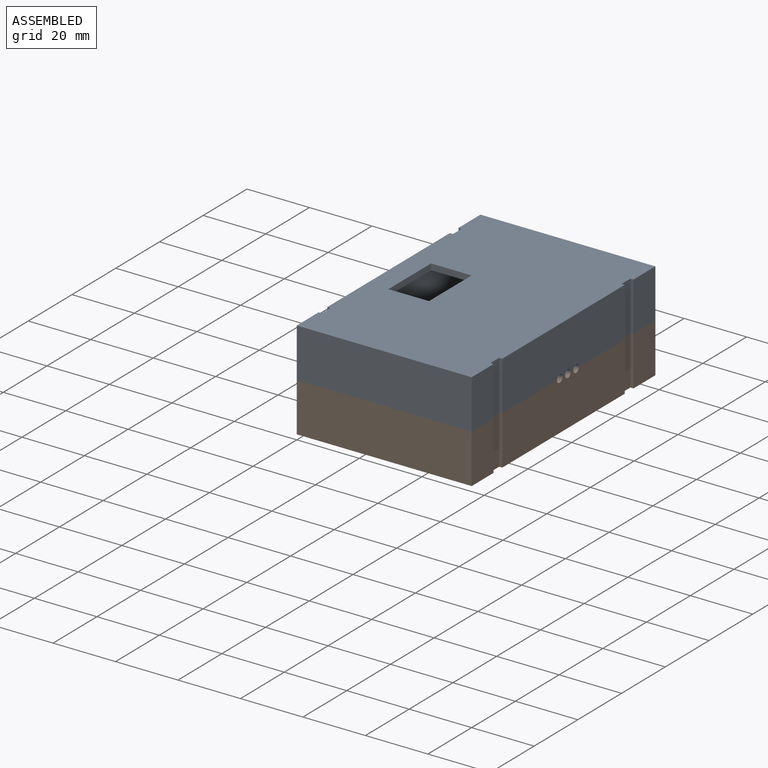
[diagram: assembled view]
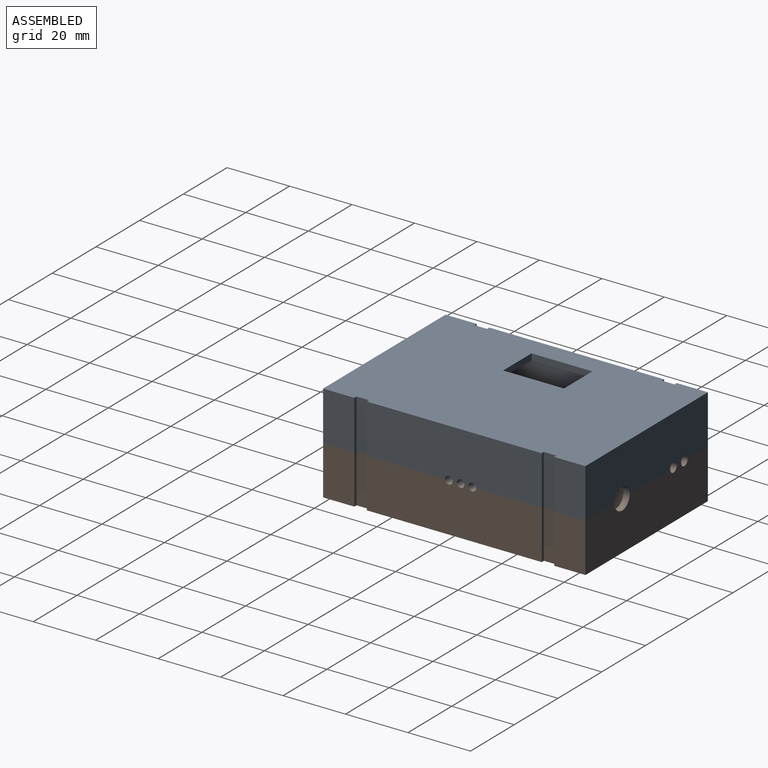
[diagram: assembled view, second angle]
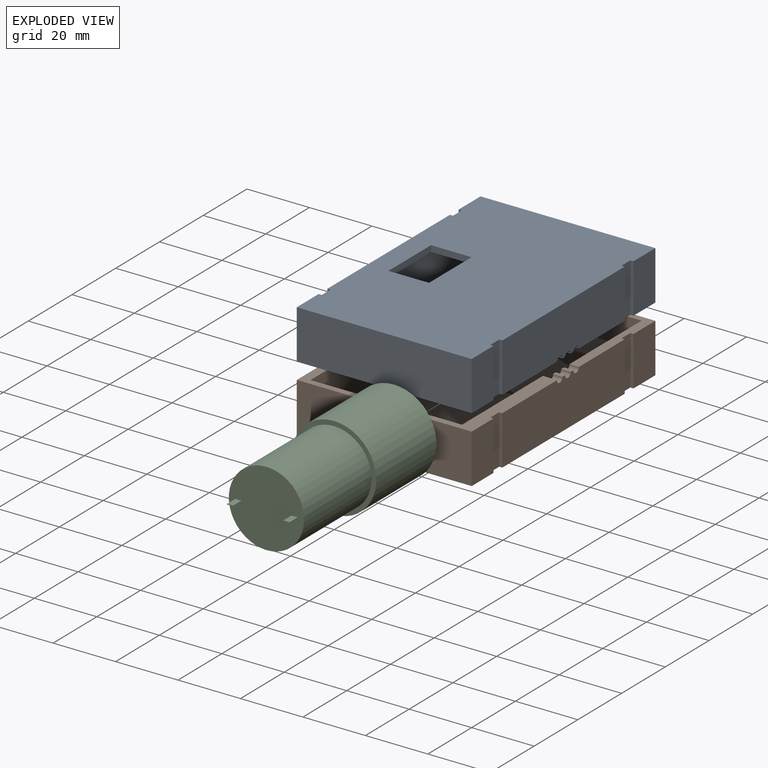
[diagram: exploded view]
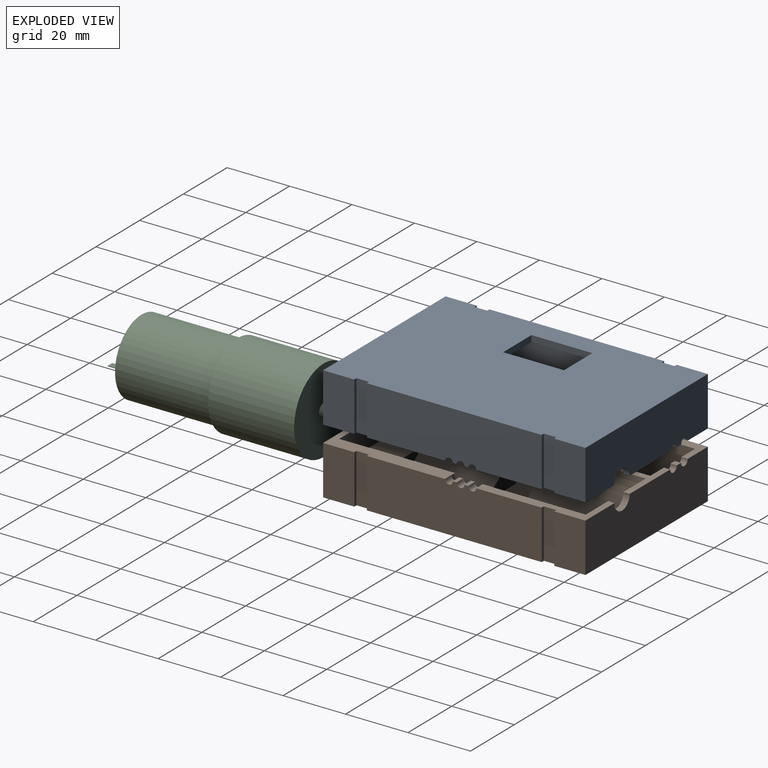
[diagram: exploded view, second angle]
ASSEMBLY  parts=3 mates=5
PART A: 62 faces, bbox 56x84x15.8 mm
  f0: plane 15.75x10mm, normal (1,0,0), area 157.5mm2, adj f5,f6,f16,f58
  f1: plane 56x15.75mm, normal (1,0,0), area 874.6mm2, adj f5,f6,f8,f10,f11,f47,f48,f49
  f2: plane 15.75x10mm, normal (-1,0,0), area 157.5mm2, adj f4,f6,f15,f59
  f3: plane 56x15.75mm, normal (-1,0,0), area 874.6mm2, adj f4,f5,f6,f7,f9,f44,f45,f46
  f4: plane 35x13.25mm, normal (0,0,1), area 121.5mm2, adj f2,f3,f14,f15,f23,f27,f44,f59
  f5: plane 56x39mm, normal (0,0,1), area 381.5mm2, adj f0,f1,f3,f16,f21,f22,f26,f39
  f6: plane 84x56mm, normal (0,0,-1), area 4434.5mm2, adj f0,f1,f2,f3,f15,f16,f25,f35
  f7: plane 3x1.25mm, normal (0,0,1), area 3.7mm2, adj f3,f43,f45,f46
  f8: plane 3x1.25mm, normal (0,0,1), area 3.8mm2, adj f1,f26,f48,f49
  f9: plane 3x1.25mm, normal (0,0,1), area 3.7mm2, adj f3,f43,f44,f45
  f10: plane 3x1.25mm, normal (0,0,1), area 3.8mm2, adj f1,f26,f47,f48
  f11: plane 35x9.25mm, normal (0,0,1), area 113.5mm2, adj f1,f15,f19,f25,f26,f34,f47,f53
  f12: plane 37x13.75mm, normal (1,0,0), area 423.5mm2, adj f18,f22,f24,f31,f32,f41
  f13: plane 35x18.5mm, normal (0,0,1), area 103mm2, adj f14,f15,f19,f20,f23,f27,f33,f42
  f14: cylinder r=13.75mm len=33mm, axis (0,1,0), area 1183.2mm2, adj f4,f13,f23,f28,f29,f40,f42
  f15: plane 56x15.75mm, normal (0,1,0), area 855.7mm2, adj f2,f4,f6,f11,f13,f17,f25,f27
  f16: plane 56x15.75mm, normal (0,-1,0), area 882mm2, adj f0,f5,f6,f39
  f17: plane 2x2mm, normal (0,0,1), area 4mm2, adj f15,f19,f33,f34
  f18: plane 26x3.5mm, normal (0,0,1), area 91mm2, adj f12,f21,f32,f41
  f19: plane 20.5x13.75mm, normal (0,-1,0), area 274.8mm2, adj f11,f13,f17,f20,f24,f26,f33,f34
  f20: plane 33x13.75mm, normal (1,0,0), area 453.7mm2, adj f13,f19,f24,f42
  f21: cylinder r=12.25mm len=37mm, axis (0,1,0), area 1092.9mm2, adj f5,f18,f22,f30,f31,f32,f41
  f22: plane 48.5x13.75mm, normal (0,1,0), area 492.1mm2, adj f5,f12,f21,f24,f26,f31
  f23: plane 27.5x8.75mm, normal (0,-1,0), area 204mm2, adj f4,f13,f14,f27,f29
  f24: plane 80x50mm, normal (0,0,1), area 1681.5mm2, adj f12,f19,f20,f22,f26,f35,f36,f37
  f25: plane 15.75x10mm, normal (1,0,0), area 157.5mm2, adj f6,f11,f15,f53
  f26: plane 80x13.75mm, normal (-1,0,0), area 1092.6mm2, adj f5,f8,f10,f11,f19,f22,f24,f47
  f27: cylinder r=3.5mm len=7mm, axis (0,-1,0), area 22mm2, adj f4,f13,f15,f23
  f28: plane 21.21x5mm, normal (0,-1,0), area 73.8mm2, adj f14,f29
  f29: plane 21.21x10mm, normal (0,0,1), area 212.1mm2, adj f14,f23,f28
  f30: plane 18.97x4.5mm, normal (0,1,0), area 59.4mm2, adj f21,f31
  f31: plane 25.24x11mm, normal (0,0,1), area 277.6mm2, adj f12,f21,f22,f30,f32
  f32: plane 7.75x6.26mm, normal (0,-1,0), area 33.9mm2, adj f12,f18,f21,f31
  f33: cylinder r=1.5mm len=3mm, axis (0,-1,0), area 9.4mm2, adj f13,f15,f17,f19
  f34: cylinder r=1.5mm len=3mm, axis (0,-1,0), area 9.4mm2, adj f11,f15,f17,f19
  f35: plane 19.5x2mm, normal (-1,0,0), area 39mm2, adj f6,f24,f36,f38
  f36: plane 13x2mm, normal (0,1,0), area 26mm2, adj f6,f24,f35,f37
  f37: plane 19.5x2mm, normal (1,0,0), area 39mm2, adj f6,f24,f36,f38
  f38: plane 13x2mm, normal (0,-1,0), area 26mm2, adj f6,f24,f35,f37
  f39: plane 15.75x10mm, normal (-1,0,0), area 157.5mm2, adj f5,f6,f16,f50
  f40: plane 13.75x13.75mm, normal (0,-1,0), area 40.6mm2, adj f14,f24,f43
  f41: plane 29.5x13.75mm, normal (0,1,0), area 169.9mm2, adj f5,f12,f18,f21,f24,f43
  f42: plane 15.75x13.75mm, normal (0,-1,0), area 68.1mm2, adj f13,f14,f20,f24
  f43: plane 13.75x10mm, normal (1,0,0), area 130.1mm2, adj f7,f9,f24,f40,f41,f44,f45,f46
  f44: cylinder r=1.25mm len=3mm, axis (1,0,0), area 11.8mm2, adj f3,f4,f9,f43
  f45: cylinder r=1.25mm len=3mm, axis (1,0,0), area 11.8mm2, adj f3,f7,f9,f43
  f46: cylinder r=1.25mm len=3mm, axis (1,0,0), area 11.8mm2, adj f3,f5,f7,f43
  f47: cylinder r=1.25mm len=3mm, axis (1,0,0), area 11.8mm2, adj f1,f10,f11,f26
  f48: cylinder r=1.25mm len=3mm, axis (1,0,0), area 11.8mm2, adj f1,f8,f10,f26
  f49: cylinder r=1.25mm len=3mm, axis (1,0,0), area 11.8mm2, adj f1,f5,f8,f26
  f50: plane 15.75x1mm, normal (0,1,0), area 15.8mm2, adj f5,f6,f39,f51
  f51: plane 15.75x4mm, normal (-1,0,0), area 63mm2, adj f5,f6,f50,f52
  f52: plane 15.75x1mm, normal (0,-1,0), area 15.8mm2, adj f3,f5,f6,f51
  f53: plane 15.75x1mm, normal (0,-1,0), area 15.8mm2, adj f6,f11,f25,f54
  f54: plane 15.75x4mm, normal (1,0,0), area 63mm2, adj f6,f11,f53,f55
  f55: plane 15.75x1mm, normal (0,1,0), area 15.8mm2, adj f1,f6,f11,f54
  f56: plane 15.75x1mm, normal (0,-1,0), area 15.8mm2, adj f1,f5,f6,f57
  f57: plane 15.75x4mm, normal (1,0,0), area 63mm2, adj f5,f6,f56,f58
  f58: plane 15.75x1mm, normal (0,1,0), area 15.8mm2, adj f0,f5,f6,f57
  f59: plane 15.75x1mm, normal (0,-1,0), area 15.8mm2, adj f2,f4,f6,f61
  f60: plane 15.75x1mm, normal (0,1,0), area 15.8mm2, adj f3,f4,f6,f61
  f61: plane 15.75x4mm, normal (-1,0,0), area 63mm2, adj f4,f6,f59,f60
PART B: 58 faces, bbox 56x84x15.8 mm
  f0: plane 15.75x10mm, normal (-1,0,0), area 157.5mm2, adj f6,f7,f26,f55
  f1: plane 56x15.75mm, normal (-1,0,0), area 874.6mm2, adj f4,f6,f7,f9,f11,f43,f44,f45
  f2: plane 15.75x10mm, normal (1,0,0), area 157.5mm2, adj f5,f7,f26,f53
  f3: plane 56x15.75mm, normal (1,0,0), area 874.6mm2, adj f4,f5,f7,f8,f10,f40,f41,f42
  f4: plane 56x39mm, normal (0,0,1), area 381.5mm2, adj f1,f3,f14,f19,f23,f24,f25,f27
  f5: plane 35x13.25mm, normal (0,0,1), area 121.5mm2, adj f2,f3,f20,f21,f26,f28,f42,f52
  f6: plane 35x9.25mm, normal (0,0,1), area 113.5mm2, adj f0,f1,f17,f26,f27,f35,f45,f55
  f7: plane 84x56mm, normal (0,0,-1), area 4688mm2, adj f0,f1,f2,f3,f23,f24,f25,f26
  f8: plane 3x1.25mm, normal (0,0,1), area 3.8mm2, adj f3,f39,f41,f42
  f9: plane 3x1.25mm, normal (0,0,1), area 3.8mm2, adj f1,f27,f44,f45
  f10: plane 3x1.25mm, normal (0,0,1), area 3.8mm2, adj f3,f39,f40,f41
  f11: plane 3x1.25mm, normal (0,0,1), area 3.8mm2, adj f1,f27,f43,f44
  f12: plane 33x13.75mm, normal (-1,0,0), area 453.7mm2, adj f16,f17,f22,f37
  f13: plane 26x3.5mm, normal (0,0,1), area 91mm2, adj f14,f18,f33,f38
  f14: cylinder r=12.25mm len=37mm, axis (0,1,0), area 1092.9mm2, adj f4,f13,f19,f31,f32,f33,f38
  f15: plane 2x2mm, normal (0,0,1), area 4mm2, adj f17,f26,f34,f35
  f16: plane 35x18.5mm, normal (0,0,1), area 103mm2, adj f12,f17,f20,f21,f26,f28,f34,f37
  f17: plane 20.5x13.75mm, normal (0,-1,0), area 274.8mm2, adj f6,f12,f15,f16,f22,f27,f34,f35
  f18: plane 37x13.75mm, normal (-1,0,0), area 423.5mm2, adj f13,f19,f22,f32,f33,f38
  f19: plane 48.5x13.75mm, normal (0,1,0), area 492.1mm2, adj f4,f14,f18,f22,f27,f32
  f20: cylinder r=13.75mm len=33mm, axis (0,1,0), area 1183.2mm2, adj f5,f16,f21,f29,f30,f36,f37
  f21: plane 27.5x8.75mm, normal (0,-1,0), area 204mm2, adj f5,f16,f20,f28,f30
  f22: plane 80x50mm, normal (0,0,1), area 1935mm2, adj f12,f17,f18,f19,f27,f36,f37,f38
  f23: plane 15.75x10mm, normal (-1,0,0), area 157.5mm2, adj f4,f7,f24,f46
  f24: plane 56x15.75mm, normal (0,-1,0), area 882mm2, adj f4,f7,f23,f25
  f25: plane 15.75x10mm, normal (1,0,0), area 157.5mm2, adj f4,f7,f24,f49
  f26: plane 56x15.75mm, normal (0,1,0), area 855.7mm2, adj f0,f2,f5,f6,f7,f15,f16,f28
  f27: plane 80x13.75mm, normal (1,0,0), area 1092.6mm2, adj f4,f6,f9,f11,f17,f19,f22,f43
  f28: cylinder r=3.5mm len=7mm, axis (0,-1,0), area 22mm2, adj f5,f16,f21,f26
  f29: plane 21.21x5mm, normal (0,-1,0), area 73.8mm2, adj f20,f30
  f30: plane 21.21x10mm, normal (0,0,1), area 212.1mm2, adj f20,f21,f29
  f31: plane 18.97x4.5mm, normal (0,1,0), area 59.4mm2, adj f14,f32
  f32: plane 25.24x11mm, normal (0,0,1), area 277.6mm2, adj f14,f18,f19,f31,f33
  f33: plane 7.75x6.26mm, normal (0,-1,0), area 33.9mm2, adj f13,f14,f18,f32
  f34: cylinder r=1.5mm len=3mm, axis (0,-1,0), area 9.4mm2, adj f15,f16,f17,f26
  f35: cylinder r=1.5mm len=3mm, axis (0,-1,0), area 9.4mm2, adj f6,f15,f17,f26
  f36: plane 13.75x13.75mm, normal (0,-1,0), area 40.6mm2, adj f20,f22,f39
  f37: plane 15.75x13.75mm, normal (0,-1,0), area 68.1mm2, adj f12,f16,f20,f22
  f38: plane 29.5x13.75mm, normal (0,1,0), area 169.9mm2, adj f4,f13,f14,f18,f22,f39
  f39: plane 13.75x10mm, normal (-1,0,0), area 130.1mm2, adj f8,f10,f22,f36,f38,f40,f41,f42
  f40: cylinder r=1.25mm len=3mm, axis (-1,0,0), area 11.8mm2, adj f3,f4,f10,f39
  f41: cylinder r=1.25mm len=3mm, axis (-1,0,0), area 11.8mm2, adj f3,f8,f10,f39
  f42: cylinder r=1.25mm len=3mm, axis (-1,0,0), area 11.8mm2, adj f3,f5,f8,f39
  f43: cylinder r=1.25mm len=3mm, axis (-1,0,0), area 11.8mm2, adj f1,f4,f11,f27
  f44: cylinder r=1.25mm len=3mm, axis (-1,0,0), area 11.8mm2, adj f1,f9,f11,f27
  f45: cylinder r=1.25mm len=3mm, axis (-1,0,0), area 11.8mm2, adj f1,f6,f9,f27
  f46: plane 15.75x1mm, normal (0,1,0), area 15.8mm2, adj f4,f7,f23,f47
  f47: plane 15.75x4mm, normal (-1,0,0), area 63mm2, adj f4,f7,f46,f48
  f48: plane 15.75x1mm, normal (0,-1,0), area 15.8mm2, adj f1,f4,f7,f47
  f49: plane 15.75x1mm, normal (0,1,0), area 15.8mm2, adj f4,f7,f25,f51
  f50: plane 15.75x1mm, normal (0,-1,0), area 15.8mm2, adj f3,f4,f7,f51
  f51: plane 15.75x4mm, normal (1,0,0), area 63mm2, adj f4,f7,f49,f50
  f52: plane 15.75x1mm, normal (0,1,0), area 15.8mm2, adj f3,f5,f7,f54
  f53: plane 15.75x1mm, normal (0,-1,0), area 15.8mm2, adj f2,f5,f7,f54
  f54: plane 15.75x4mm, normal (1,0,0), area 63mm2, adj f5,f7,f52,f53
  f55: plane 15.75x1mm, normal (0,-1,0), area 15.8mm2, adj f0,f6,f7,f57
  f56: plane 15.75x1mm, normal (0,1,0), area 15.8mm2, adj f1,f6,f7,f57
  f57: plane 15.75x4mm, normal (-1,0,0), area 63mm2, adj f6,f7,f55,f56
PART C: 17 faces, bbox 27.1x68.8x27.1 mm
  f0: plane 24.12x24.12mm, normal (0,-1,0), area 456.1mm2, adj f1,f7,f9,f10,f11,f12,f14,f15
  f1: cylinder r=12.06mm len=30.86mm, axis (0,-1,0), area 2338.4mm2, adj f0,f2
  f2: plane 27.08x27.08mm, normal (0,-1,0), area 119mm2, adj f1,f3
  f3: cylinder r=13.54mm len=27.5mm, axis (0,-1,0), area 2339.5mm2, adj f2,f4
  f4: plane 27.08x27.08mm, normal (0,1,0), area 561.7mm2, adj f3,f5
  f5: cylinder r=2.13mm len=6.7mm, axis (0,-1,0), area 89.7mm2, adj f4,f6
  f6: plane 4.26x4.26mm, normal (0,1,0), area 14.3mm2, adj f5
  f7: plane 3.75x0.2mm, normal (-1,0,0), area 0.8mm2, adj f0,f8,f10,f11
  f8: plane 2x0.2mm, normal (0,-1,0), area 0.4mm2, adj f7,f9,f10,f11
  f9: plane 3.75x0.2mm, normal (1,0,0), area 0.8mm2, adj f0,f8,f10,f11
  f10: plane 3.75x2mm, normal (0,0,1), area 7.5mm2, adj f0,f7,f8,f9
  f11: plane 3.75x2mm, normal (0,0,-1), area 7.5mm2, adj f0,f7,f8,f9
  f12: plane 3.75x0.2mm, normal (-1,0,0), area 0.8mm2, adj f0,f13,f15,f16
  f13: plane 2x0.2mm, normal (0,-1,0), area 0.4mm2, adj f12,f14,f15,f16
  f14: plane 3.75x0.2mm, normal (1,0,0), area 0.8mm2, adj f0,f13,f15,f16
  f15: plane 3.75x2mm, normal (0,0,1), area 7.5mm2, adj f0,f12,f13,f14
  f16: plane 3.75x2mm, normal (0,0,-1), area 7.5mm2, adj f0,f12,f13,f14
PLACE A rot(axis=(0,1,0),180deg) t=(112,0,31.5)mm
PLACE B at identity
PLACE C t=(39.25,13.64,15.75)mm
MATE planar A.f8 <-> B.f9  axis (0,0,-1) through (1.5,42.13,15.75)mm
MATE planar A.f3 <-> B.f2  axis (1,0,0) through (56,42.13,15.75)mm
MATE planar A.f15 <-> B.f26  axis (0,1,0) through (27.87,84,23.83)mm
MATE cylindrical C.f1 <-> B.f14  axis (0,-1,0) through (39.25,72,15.75)mm
MATE planar C.f1 <-> B.f29  axis (0,1,0) through (39.25,72,15.75)mm
